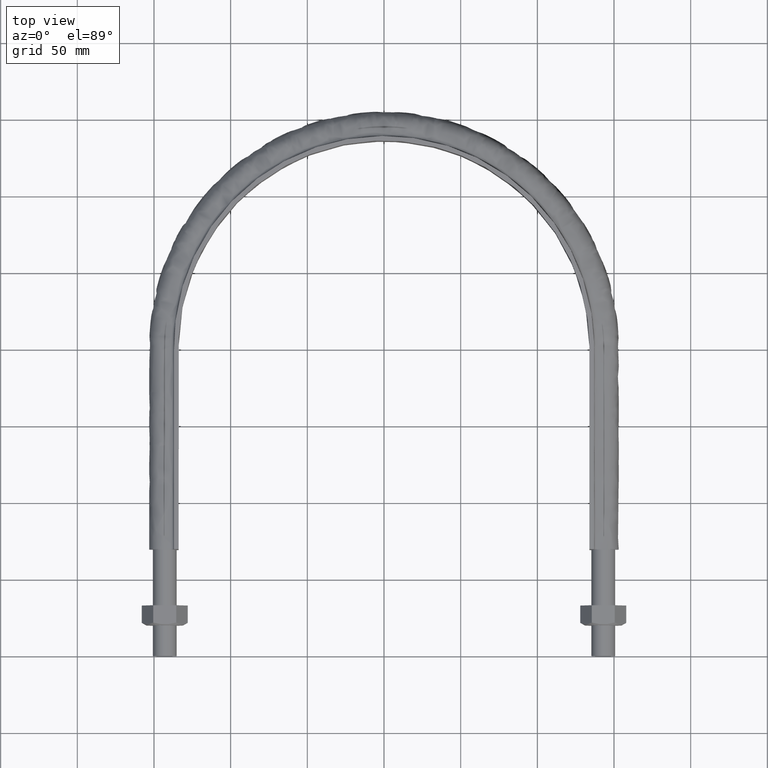
[diagram: clean part render]
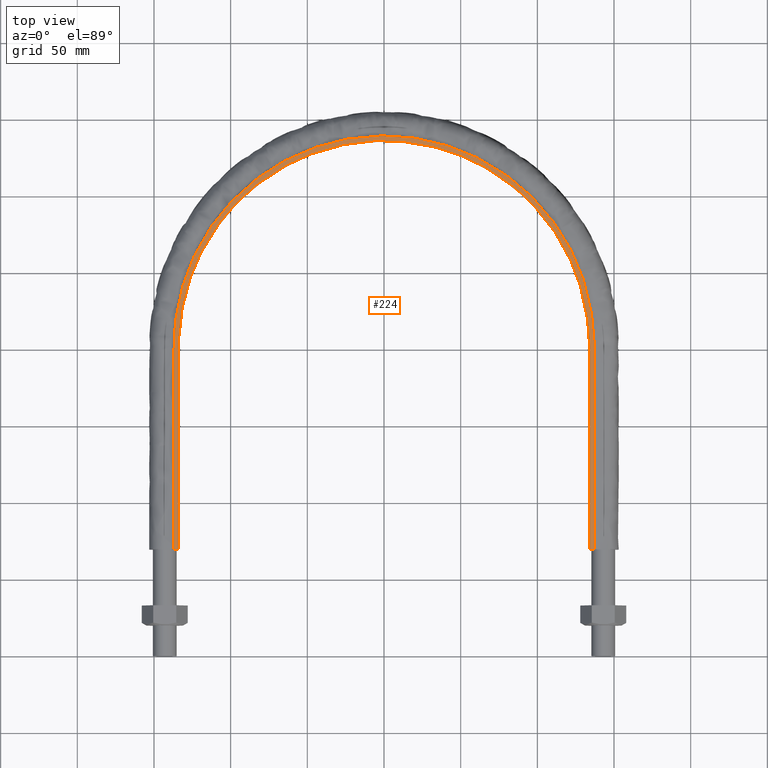
[diagram: same view with one face highlighted and labeled with its STEP entity id]
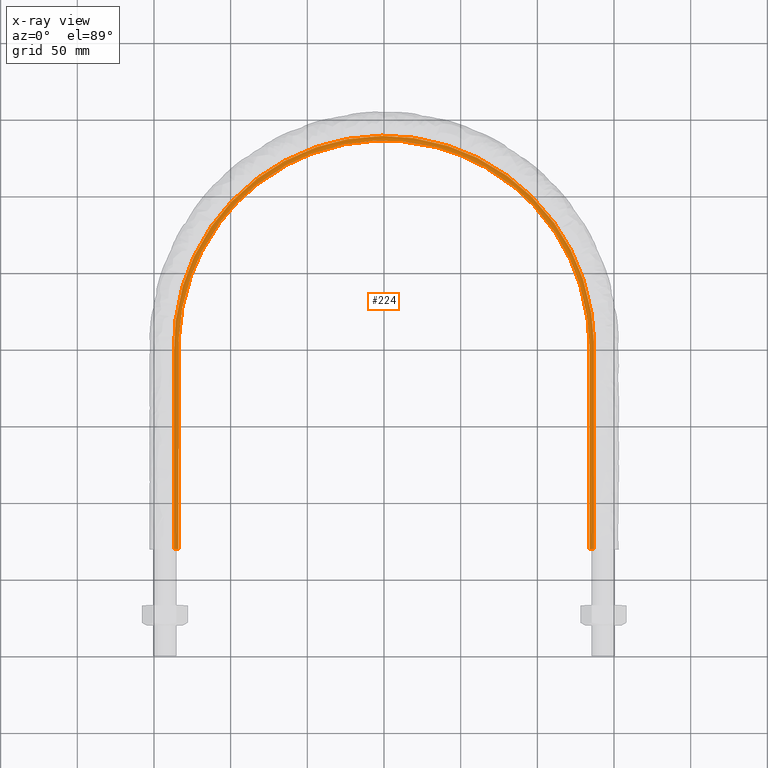
[diagram: x-ray of the same camera — body ghosted, the highlighted face saturated]
A machine part, top view. The second image highlights one B-rep face of the part: STEP entity #224.
The next image is the same camera in x-ray: the body ghosted, the highlighted face saturated — about 0% of this face is hidden behind the body in this view.
In plain terms, the highlighted planar face has unit normal (0, 0, 1).
Its self-contained STEP definition (entity closure, byte-faithful):
#224 = ADVANCED_FACE( '', ( #272 ), #273, .T. );
#272 = FACE_OUTER_BOUND( '', #560, .T. );
#273 = PLANE( '', #561 );
#560 = EDGE_LOOP( '', ( #1517, #1518, #1519, #1520 ) );
#561 = AXIS2_PLACEMENT_3D( '', #1521, #1522, #1523 );
#1517 = ORIENTED_EDGE( '', *, *, #1846, .T. );
#1518 = ORIENTED_EDGE( '', *, *, #1835, .T. );
#1519 = ORIENTED_EDGE( '', *, *, #1841, .T. );
#1520 = ORIENTED_EDGE( '', *, *, #1832, .F. );
#1521 = CARTESIAN_POINT( '', ( 200.000000000000, 469.500000000000, 20.0000000000000 ) );
#1522 = DIRECTION( '', ( 0.000000000000000, 0.000000000000000, 1.00000000000000 ) );
#1523 = DIRECTION( '', ( 1.00000000000000, 0.000000000000000, 0.000000000000000 ) );
#1832 = EDGE_CURVE( '', #1905, #1907, #1908, .T. );
#1835 = EDGE_CURVE( '', #1913, #1911, #1914, .T. );
#1841 = EDGE_CURVE( '', #1911, #1907, #1923, .F. );
#1846 = EDGE_CURVE( '', #1905, #1913, #1931, .F. );
#1905 = VERTEX_POINT( '', #2047 );
#1907 = VERTEX_POINT( '', #2050 );
#1908 = B_SPLINE_CURVE_WITH_KNOTS( '', 3, ( #2051, #2052, #2053, #2054, #2055, #2056, #2057, #2058, #2059, #2060, #2061, #2062, #2063, #2064, #2065, #2066, #2067, #2068, #2069, #2070, #2071, #2072, #2073, #2074, #2075, #2076, #2077, #2078, #2079, #2080, #2081, #2082, #2083, #2084, #2085, #2086, #2087, #2088, #2089, #2090, #2091, #2092, #2093, #2094, #2095, #2096, #2097, #2098, #2099, #2100, #2101, #2102, #2103, #2104, #2105, #2106, #2107, #2108, #2109, #2110, #2111, #2112, #2113, #2114, #2115, #2116, #2117, #2118, #2119, #2120, #2121, #2122, #2123, #2124, #2125, #2126, #2127, #2128, #2129, #2130, #2131, #2132, #2133, #2134, #2135, #2136, #2137, #2138, #2139, #2140, #2141, #2142, #2143, #2144, #2145, #2146, #2147, #2148, #2149, #2150, #2151, #2152, #2153, #2154, #2155, #2156, #2157 ), .UNSPECIFIED., .F., .F., ( 4, 1, 2, 2, 2, 2, 2, 2, 2, 2, 2, 2, 2, 2, 2, 2, 2, 2, 2, 2, 2, 2, 2, 2, 2, 2, 2, 2, 2, 2, 2, 2, 2, 2, 2, 1, 2, 2, 2, 2, 2, 2, 2, 2, 2, 2, 2, 2, 2, 2, 2, 2, 2, 1, 4 ), ( 1.38777878078145E-017, 0.0874256844655848, 0.131138526698377, 0.133870579337927, 0.136602631977476, 0.142066737256575, 0.152994947814773, 0.174851368931169, 0.180315474210268, 0.183047526849818, 0.185779579489367, 0.196707790047565, 0.218564211163961, 0.229492421722159, 0.232224474361709, 0.234956527001258, 0.240420632280357, 0.262277053396753, 0.273205263954951, 0.275937316594500, 0.278669369234049, 0.284133474513148, 0.305989895629544, 0.316918106187742, 0.322382211466840, 0.325114264106390, 0.327846316745939, 0.349702737862335, 0.360630948420533, 0.366095053699632, 0.368827106339181, 0.371559158978731, 0.393415580095126, 0.415272001211522, 0.418004053851071, 0.420736106490621, 0.426200211769720, 0.437128422327918, 0.458984843444314, 0.461716896083863, 0.464448948723413, 0.469913054002512, 0.480841264560710, 0.502697685677107, 0.508161790956206, 0.513625896235305, 0.524554106793504, 0.546410527909901, 0.551874633189000, 0.557338738468099, 0.562802843747198, 0.565534896386748, 0.568266949026298, 0.611979791259092, 0.699405475724679 ), .UNSPECIFIED. );
#1911 = VERTEX_POINT( '', #2161 );
#1913 = VERTEX_POINT( '', #2164 );
#1914 = B_SPLINE_CURVE_WITH_KNOTS( '', 3, ( #2165, #2166, #2167, #2168, #2169, #2170, #2171, #2172, #2173, #2174, #2175, #2176, #2177, #2178, #2179, #2180, #2181 ), .UNSPECIFIED., .F., .F., ( 4, 3, 1, 1, 1, 1, 1, 1, 1, 3, 4 ), ( -10.0000000000000, -9.00000000000000, -8.00000000000000, -7.00000000000000, -6.00000000000000, -5.00000000000000, -4.00000000000000, -3.00000000000000, -2.00000000000000, -1.00000000000000, 0.000000000000000 ), .UNSPECIFIED. );
#1923 = LINE( '', #2240, #2241 );
#1931 = LINE( '', #2376, #2377 );
#2047 = CARTESIAN_POINT( '', ( -136.950000000000, 69.5000000000001, 20.0000000000000 ) );
#2050 = CARTESIAN_POINT( '', ( 136.950000000000, 69.5000000000000, 20.0000000000000 ) );
#2051 = CARTESIAN_POINT( '', ( -136.950000000000, 69.5000000000001, 20.0000000000000 ) );
#2052 = CARTESIAN_POINT( '', ( -136.950000000000, 98.6419002480978, 20.0000000000000 ) );
#2053 = CARTESIAN_POINT( '', ( -136.950000000000, 142.354750620244, 20.0000000000000 ) );
#2054 = CARTESIAN_POINT( '', ( -136.950000000000, 186.067600992391, 20.0000000000000 ) );
#2055 = CARTESIAN_POINT( '', ( -136.950000000000, 201.549235499193, 20.0000000000000 ) );
#2056 = CARTESIAN_POINT( '', ( -136.952005766823, 202.459921105958, 20.0000000000000 ) );
#2057 = CARTESIAN_POINT( '', ( -136.934979206279, 204.281279481061, 20.0000000000000 ) );
#2058 = CARTESIAN_POINT( '', ( -136.916553871832, 205.191952619814, 20.0000000000000 ) );
#2059 = CARTESIAN_POINT( '', ( -136.834753701177, 207.923955849786, 20.0000000000000 ) );
#2060 = CARTESIAN_POINT( '', ( -136.743599783762, 209.741272047873, 20.0000000000000 ) );
#2061 = CARTESIAN_POINT( '', ( -136.363495553161, 215.166484778746, 20.0000000000000 ) );
#2062 = CARTESIAN_POINT( '', ( -135.967488703048, 218.753870458486, 20.0000000000000 ) );
#2063 = CARTESIAN_POINT( '', ( -134.367551969831, 229.431038801512, 20.0000000000000 ) );
#2064 = CARTESIAN_POINT( '', ( -132.750553866294, 236.435595074198, 20.0000000000000 ) );
#2065 = CARTESIAN_POINT( '', ( -130.033489035347, 245.047725779317, 20.0000000000000 ) );
#2066 = CARTESIAN_POINT( '', ( -129.454886141075, 246.762891350761, 20.0000000000000 ) );
#2067 = CARTESIAN_POINT( '', ( -128.533317502651, 249.324567410150, 20.0000000000000 ) );
#2068 = CARTESIAN_POINT( '', ( -128.217212893147, 250.176620027555, 20.0000000000000 ) );
#2069 = CARTESIAN_POINT( '', ( -127.566740219217, 251.876957051049, 20.0000000000000 ) );
#2070 = CARTESIAN_POINT( '', ( -127.232398800355, 252.725180838086, 20.0000000000000 ) );
#2071 = CARTESIAN_POINT( '', ( -125.522807242115, 256.937555990544, 20.0000000000000 ) );
#2072 = CARTESIAN_POINT( '', ( -124.027890382199, 260.231015655093, 20.0000000000000 ) );
#2073 = CARTESIAN_POINT( '', ( -119.177772488661, 269.891903517815, 20.0000000000000 ) );
#2074 = CARTESIAN_POINT( '', ( -115.456951462214, 276.039688790403, 20.0000000000000 ) );
#2075 = CARTESIAN_POINT( '', ( -109.152951019669, 284.827169774979, 20.0000000000000 ) );
#2076 = CARTESIAN_POINT( '', ( -106.930050833051, 287.683299996961, 20.0000000000000 ) );
#2077 = CARTESIAN_POINT( '', ( -103.994442146732, 291.159156375520, 20.0000000000000 ) );
#2078 = CARTESIAN_POINT( '', ( -103.399206220779, 291.849830869778, 20.0000000000000 ) );
#2079 = CARTESIAN_POINT( '', ( -102.198265091274, 293.215468669278, 20.0000000000000 ) );
#2080 = CARTESIAN_POINT( '', ( -101.591920700928, 293.891203542521, 20.0000000000000 ) );
#2081 = CARTESIAN_POINT( '', ( -99.7553846231874, 295.897299082132, 20.0000000000000 ) );
#2082 = CARTESIAN_POINT( '', ( -98.5077032633103, 297.206566629289, 20.0000000000000 ) );
#2083 = CARTESIAN_POINT( '', ( -92.1539858602963, 303.613835991371, 20.0000000000000 ) );
#2084 = CARTESIAN_POINT( '', ( -86.7024715106574, 308.295179626362, 20.0000000000000 ) );
#2085 = CARTESIAN_POINT( '', ( -77.9891669345021, 314.670721620165, 20.0000000000000 ) );
#2086 = CARTESIAN_POINT( '', ( -74.9946413234015, 316.687249879651, 20.0000000000000 ) );
#2087 = CARTESIAN_POINT( '', ( -71.1363767592659, 319.069086719335, 20.0000000000000 ) );
#2088 = CARTESIAN_POINT( '', ( -70.3589796436298, 319.538526390098, 20.0000000000000 ) );
#2089 = CARTESIAN_POINT( '', ( -68.7925101038773, 320.463324926288, 20.0000000000000 ) );
#2090 = CARTESIAN_POINT( '', ( -68.0028416365612, 320.918994503192, 20.0000000000000 ) );
#2091 = CARTESIAN_POINT( '', ( -65.6265150792850, 322.258978990775, 20.0000000000000 ) );
#2092 = CARTESIAN_POINT( '', ( -64.0295971988689, 323.118030590872, 20.0000000000000 ) );
#2093 = CARTESIAN_POINT( '', ( -55.9824089667626, 327.244365806941, 20.0000000000000 ) );
#2094 = CARTESIAN_POINT( '', ( -49.3439512001477, 330.003826159949, 20.0000000000000 ) );
#2095 = CARTESIAN_POINT( '', ( -39.0910082444920, 333.346268295591, 20.0000000000000 ) );
#2096 = CARTESIAN_POINT( '', ( -35.6241551653227, 334.327634953128, 20.0000000000000 ) );
#2097 = CARTESIAN_POINT( '', ( -30.3492784457162, 335.598384851550, 20.0000000000000 ) );
#2098 = CARTESIAN_POINT( '', ( -28.5785337099308, 335.988365122305, 20.0000000000000 ) );
#2099 = CARTESIAN_POINT( '', ( -25.9034309357533, 336.522102744638, 20.0000000000000 ) );
#2100 = CARTESIAN_POINT( '', ( -25.0077107435981, 336.691611247169, 20.0000000000000 ) );
#2101 = CARTESIAN_POINT( '', ( -23.2172138820022, 337.012112274078, 20.0000000000000 ) );
#2102 = CARTESIAN_POINT( '', ( -22.3218036874147, 337.163270419116, 20.0000000000000 ) );
#2103 = CARTESIAN_POINT( '', ( -14.2616746941611, 338.442909678169, 20.0000000000000 ) );
#2104 = CARTESIAN_POINT( '', ( -7.08688203430848, 339.005162357812, 20.0000000000000 ) );
#2105 = CARTESIAN_POINT( '', ( 3.69045053045534, 338.997356057589, 20.0000000000000 ) );
#2106 = CARTESIAN_POINT( '', ( 7.28543714269633, 338.851850186394, 20.0000000000000 ) );
#2107 = CARTESIAN_POINT( '', ( 12.6817359396804, 338.418941046074, 20.0000000000000 ) );
#2108 = CARTESIAN_POINT( '', ( 14.4811397915418, 338.238800753867, 20.0000000000000 ) );
#2109 = CARTESIAN_POINT( '', ( 17.1812121944278, 337.914258555030, 20.0000000000000 ) );
#2110 = CARTESIAN_POINT( '', ( 18.0813968219254, 337.797056870436, 20.0000000000000 ) );
#2111 = CARTESIAN_POINT( '', ( 19.8820902819517, 337.544430686409, 20.0000000000000 ) );
#2112 = CARTESIAN_POINT( '', ( 20.7835449490466, 337.408813108140, 20.0000000000000 ) );
#2113 = CARTESIAN_POINT( '', ( 28.8670965883877, 336.111328549363, 20.0000000000000 ) );
#2114 = CARTESIAN_POINT( '', ( 35.8703135521035, 334.406800400230, 20.0000000000000 ) );
#2115 = CARTESIAN_POINT( '', ( 49.5251538415603, 329.933849723641, 20.0000000000000 ) );
#2116 = CARTESIAN_POINT( '', ( 56.1748232267896, 327.159514727639, 20.0000000000000 ) );
#2117 = CARTESIAN_POINT( '', ( 63.4492399728143, 323.413652350476, 20.0000000000000 ) );
#2118 = CARTESIAN_POINT( '', ( 64.2555412528565, 322.988297906808, 20.0000000000000 ) );
#2119 = CARTESIAN_POINT( '', ( 65.8566175141692, 322.123190874313, 20.0000000000000 ) );
#2120 = CARTESIAN_POINT( '', ( 68.2414579243054, 320.803750954357, 20.0000000000000 ) );
#2121 = CARTESIAN_POINT( '', ( 70.5763589403808, 319.419469626307, 20.0000000000000 ) );
#2122 = CARTESIAN_POINT( '', ( 75.1805857318986, 316.565763947973, 20.0000000000000 ) );
#2123 = CARTESIAN_POINT( '', ( 78.1627035340866, 314.549856366448, 20.0000000000000 ) );
#2124 = CARTESIAN_POINT( '', ( 86.8543207620446, 308.171383663363, 20.0000000000000 ) );
#2125 = CARTESIAN_POINT( '', ( 92.3077229888429, 303.476301431760, 20.0000000000000 ) );
#2126 = CARTESIAN_POINT( '', ( 98.0418417248447, 297.673728261722, 20.0000000000000 ) );
#2127 = CARTESIAN_POINT( '', ( 98.6733697505328, 297.021731690659, 20.0000000000000 ) );
#2128 = CARTESIAN_POINT( '', ( 99.9251833237795, 295.703141292675, 20.0000000000000 ) );
#2129 = CARTESIAN_POINT( '', ( 100.546136743140, 295.035752086233, 20.0000000000000 ) );
#2130 = CARTESIAN_POINT( '', ( 102.386046552861, 293.018007311464, 20.0000000000000 ) );
#2131 = CARTESIAN_POINT( '', ( 103.581668710419, 291.652670943034, 20.0000000000000 ) );
#2132 = CARTESIAN_POINT( '', ( 107.077810366198, 287.497593093914, 20.0000000000000 ) );
#2133 = CARTESIAN_POINT( '', ( 109.287409665407, 284.648655660805, 20.0000000000000 ) );
#2134 = CARTESIAN_POINT( '', ( 115.563663674955, 275.872310524423, 20.0000000000000 ) );
#2135 = CARTESIAN_POINT( '', ( 119.278439319533, 269.715802833902, 20.0000000000000 ) );
#2136 = CARTESIAN_POINT( '', ( 123.322162063999, 261.629687512515, 20.0000000000000 ) );
#2137 = CARTESIAN_POINT( '', ( 124.100657851931, 259.992770208298, 20.0000000000000 ) );
#2138 = CARTESIAN_POINT( '', ( 125.595826737253, 256.678684334607, 20.0000000000000 ) );
#2139 = CARTESIAN_POINT( '', ( 126.312684101757, 255.000403133008, 20.0000000000000 ) );
#2140 = CARTESIAN_POINT( '', ( 128.350441665648, 249.950404789000, 20.0000000000000 ) );
#2141 = CARTESIAN_POINT( '', ( 129.565681668818, 246.548771227831, 20.0000000000000 ) );
#2142 = CARTESIAN_POINT( '', ( 132.799201309553, 236.243261059042, 20.0000000000000 ) );
#2143 = CARTESIAN_POINT( '', ( 134.406489655849, 229.239070076659, 20.0000000000000 ) );
#2144 = CARTESIAN_POINT( '', ( 135.730368078419, 220.316580552518, 20.0000000000000 ) );
#2145 = CARTESIAN_POINT( '', ( 135.960596827439, 218.523650463583, 20.0000000000000 ) );
#2146 = CARTESIAN_POINT( '', ( 136.350715609652, 214.920622076923, 20.0000000000000 ) );
#2147 = CARTESIAN_POINT( '', ( 136.510773884774, 213.109390090213, 20.0000000000000 ) );
#2148 = CARTESIAN_POINT( '', ( 136.758613068843, 209.474281669828, 20.0000000000000 ) );
#2149 = CARTESIAN_POINT( '', ( 136.846031799770, 207.656639207715, 20.0000000000000 ) );
#2150 = CARTESIAN_POINT( '', ( 136.922369077726, 204.930043041096, 20.0000000000000 ) );
#2151 = CARTESIAN_POINT( '', ( 136.939052762000, 204.021156467245, 20.0000000000000 ) );
#2152 = CARTESIAN_POINT( '', ( 136.951967908155, 202.203333870081, 20.0000000000000 ) );
#2153 = CARTESIAN_POINT( '', ( 136.950000000000, 201.294402200339, 20.0000000000000 ) );
#2154 = CARTESIAN_POINT( '', ( 136.950000000000, 185.842644700989, 20.0000000000000 ) );
#2155 = CARTESIAN_POINT( '', ( 136.950000000000, 142.214152938118, 20.0000000000000 ) );
#2156 = CARTESIAN_POINT( '', ( 136.950000000000, 98.5856611752475, 20.0000000000000 ) );
#2157 = CARTESIAN_POINT( '', ( 136.950000000000, 69.5000000000000, 20.0000000000000 ) );
#2161 = CARTESIAN_POINT( '', ( 133.950000000000, 69.5000000000000, 20.0000000000000 ) );
#2164 = CARTESIAN_POINT( '', ( -133.950000000000, 69.5000000000001, 20.0000000000000 ) );
#2165 = CARTESIAN_POINT( '', ( -133.950000000000, 69.5000000000001, 20.0000000000000 ) );
#2166 = CARTESIAN_POINT( '', ( -133.950000000000, 113.683333333333, 20.0000000000000 ) );
#2167 = CARTESIAN_POINT( '', ( -133.950000000000, 157.866666666667, 20.0000000000000 ) );
#2168 = CARTESIAN_POINT( '', ( -133.950000000000, 202.050000000000, 20.0000000000000 ) );
#2169 = CARTESIAN_POINT( '', ( -133.950000000000, 219.566032700257, 20.0000000000000 ) );
#2170 = CARTESIAN_POINT( '', ( -126.975474198415, 254.652216480459, 20.0000000000000 ) );
#2171 = CARTESIAN_POINT( '', ( -97.1828205848687, 299.230867859828, 20.0000000000000 ) );
#2172 = CARTESIAN_POINT( '', ( -52.5949635017385, 329.026032119855, 20.0000000000000 ) );
#2173 = CARTESIAN_POINT( '', ( 9.70849429885587E-014, 339.486983940073, 20.0000000000000 ) );
#2174 = CARTESIAN_POINT( '', ( 52.5949635017385, 329.026032119855, 20.0000000000000 ) );
#2175 = CARTESIAN_POINT( '', ( 97.1828205848688, 299.230867859828, 20.0000000000000 ) );
#2176 = CARTESIAN_POINT( '', ( 126.975474198415, 254.652216480460, 20.0000000000000 ) );
#2177 = CARTESIAN_POINT( '', ( 133.950000000000, 219.566032700257, 20.0000000000000 ) );
#2178 = CARTESIAN_POINT( '', ( 133.950000000000, 202.050000000000, 20.0000000000000 ) );
#2179 = CARTESIAN_POINT( '', ( 133.950000000000, 157.866666666667, 20.0000000000000 ) );
#2180 = CARTESIAN_POINT( '', ( 133.950000000000, 113.683333333333, 20.0000000000000 ) );
#2181 = CARTESIAN_POINT( '', ( 133.950000000000, 69.5000000000000, 20.0000000000000 ) );
#2240 = CARTESIAN_POINT( '', ( 200.000000000000, 69.5000000000001, 20.0000000000000 ) );
#2241 = VECTOR( '', #2780, 1000.00000000000 );
#2376 = CARTESIAN_POINT( '', ( 200.000000000000, 69.5000000000001, 20.0000000000000 ) );
#2377 = VECTOR( '', #2782, 1000.00000000000 );
#2780 = DIRECTION( '', ( -1.00000000000000, 1.83649404852125E-048, 0.000000000000000 ) );
#2782 = DIRECTION( '', ( -1.00000000000000, 1.83649404852125E-048, 0.000000000000000 ) );